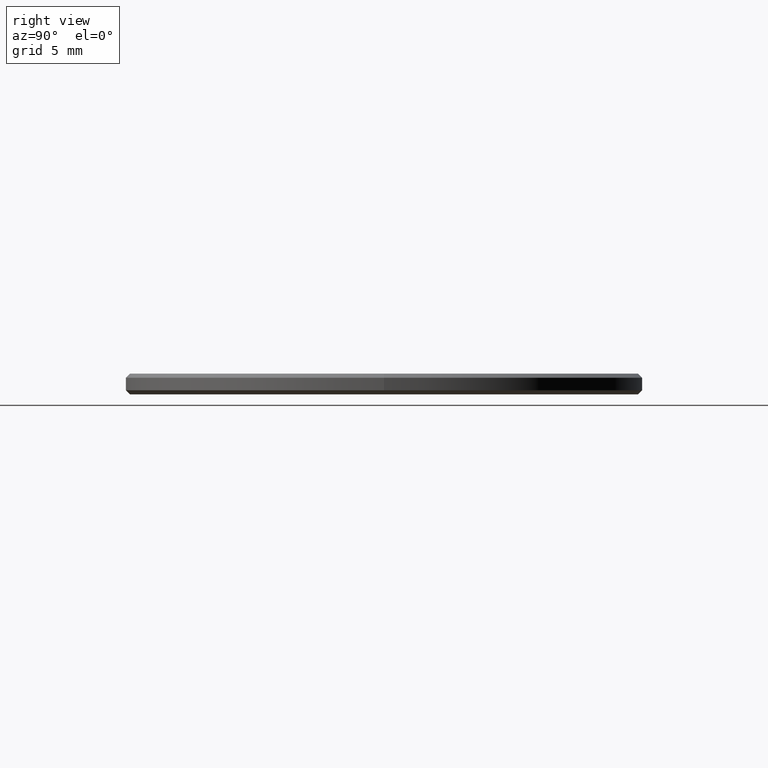
[diagram: clean part render]
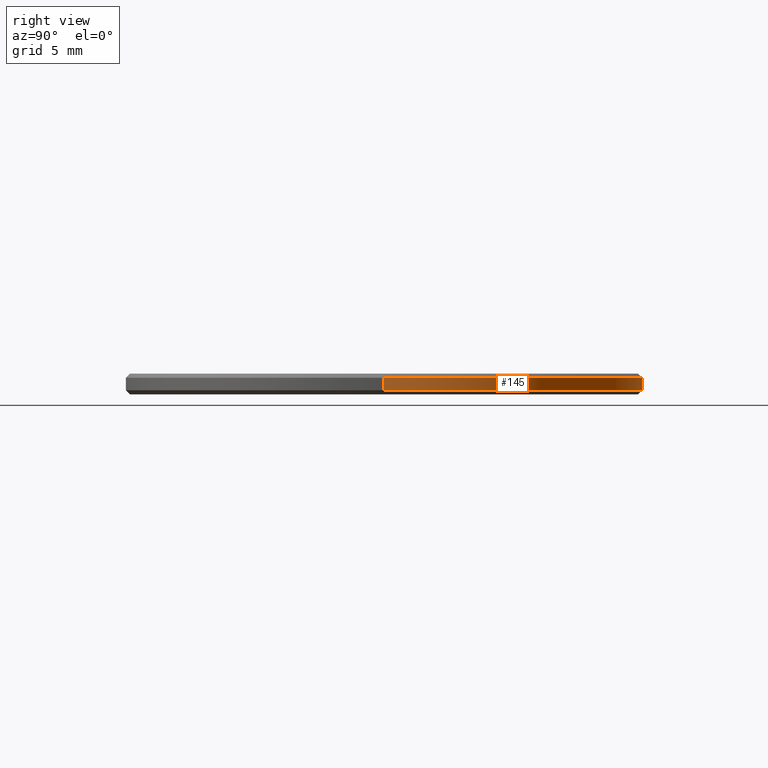
[diagram: same view with one face highlighted and labeled with its STEP entity id]
A machine part, right view. The second image highlights one B-rep face of the part: STEP entity #145.
In plain terms, the highlighted cylindrical surface (partial cylindrical patch) has radius 12.5 mm, axis along (-0, -0, -1).
Its self-contained STEP definition (entity closure, byte-faithful):
#1 = VECTOR ( 'NONE', #26, 1000.000000000000000 ) ;
#4 = CARTESIAN_POINT ( 'NONE',  ( 0.000000000000000000, 0.000000000000000000, 1.000000000000000000 ) ) ;
#6 = CYLINDRICAL_SURFACE ( 'NONE', #224, 12.50000000000000000 ) ;
#26 = DIRECTION ( 'NONE',  ( -0.000000000000000000, -0.000000000000000000, -1.000000000000000000 ) ) ;
#33 = VERTEX_POINT ( 'NONE', #37 ) ;
#35 = ORIENTED_EDGE ( 'NONE', *, *, #161, .F. ) ;
#36 = EDGE_LOOP ( 'NONE', ( #213, #233, #86, #35 ) ) ;
#37 = CARTESIAN_POINT ( 'NONE',  ( 12.50000000000000000, 1.530808498934191521E-15, 0.8000000000000029310 ) ) ;
#42 = DIRECTION ( 'NONE',  ( 0.000000000000000000, 0.000000000000000000, -1.000000000000000000 ) ) ;
#44 = VERTEX_POINT ( 'NONE', #121 ) ;
#59 = CARTESIAN_POINT ( 'NONE',  ( 0.000000000000000000, 0.000000000000000000, 0.8000000000000029310 ) ) ;
#75 = EDGE_CURVE ( 'NONE', #157, #90, #143, .T. ) ;
#86 = ORIENTED_EDGE ( 'NONE', *, *, #75, .T. ) ;
#87 = CARTESIAN_POINT ( 'NONE',  ( 0.000000000000000000, 0.000000000000000000, 0.1999999999999987899 ) ) ;
#88 = CIRCLE ( 'NONE', #128, 12.50000000000000000 ) ;
#90 = VERTEX_POINT ( 'NONE', #198 ) ;
#114 = DIRECTION ( 'NONE',  ( -1.000000000000000000, 0.000000000000000000, 0.000000000000000000 ) ) ;
#115 = LINE ( 'NONE', #229, #120 ) ;
#120 = VECTOR ( 'NONE', #184, 1000.000000000000000 ) ;
#121 = CARTESIAN_POINT ( 'NONE',  ( -12.50000000000000000, 0.000000000000000000, 0.8000000000000029310 ) ) ;
#128 = AXIS2_PLACEMENT_3D ( 'NONE', #59, #42, #154 ) ;
#135 = EDGE_CURVE ( 'NONE', #33, #157, #115, .T. ) ;
#138 = CARTESIAN_POINT ( 'NONE',  ( 12.50000000000000000, 1.530808498934191521E-15, 0.1999999999999987899 ) ) ;
#143 = CIRCLE ( 'NONE', #200, 12.50000000000000000 ) ;
#145 = ADVANCED_FACE ( 'NONE', ( #226 ), #6, .T. ) ;
#146 = EDGE_CURVE ( 'NONE', #44, #33, #88, .T. ) ;
#150 = DIRECTION ( 'NONE',  ( 1.000000000000000000, 0.000000000000000000, 0.000000000000000000 ) ) ;
#152 = LINE ( 'NONE', #186, #1 ) ;
#154 = DIRECTION ( 'NONE',  ( 1.000000000000000000, 0.000000000000000000, 0.000000000000000000 ) ) ;
#157 = VERTEX_POINT ( 'NONE', #138 ) ;
#161 = EDGE_CURVE ( 'NONE', #44, #90, #152, .T. ) ;
#184 = DIRECTION ( 'NONE',  ( -0.000000000000000000, -0.000000000000000000, -1.000000000000000000 ) ) ;
#186 = CARTESIAN_POINT ( 'NONE',  ( -12.50000000000000000, 0.000000000000000000, 1.000000000000000000 ) ) ;
#198 = CARTESIAN_POINT ( 'NONE',  ( -12.50000000000000000, 0.000000000000000000, 0.1999999999999987899 ) ) ;
#200 = AXIS2_PLACEMENT_3D ( 'NONE', #87, #239, #150 ) ;
#213 = ORIENTED_EDGE ( 'NONE', *, *, #146, .T. ) ;
#223 = DIRECTION ( 'NONE',  ( -0.000000000000000000, -0.000000000000000000, -1.000000000000000000 ) ) ;
#224 = AXIS2_PLACEMENT_3D ( 'NONE', #4, #223, #114 ) ;
#226 = FACE_OUTER_BOUND ( 'NONE', #36, .T. ) ;
#229 = CARTESIAN_POINT ( 'NONE',  ( 12.50000000000000000, 1.530808498934191521E-15, 1.000000000000000000 ) ) ;
#233 = ORIENTED_EDGE ( 'NONE', *, *, #135, .T. ) ;
#239 = DIRECTION ( 'NONE',  ( -0.000000000000000000, -0.000000000000000000, 1.000000000000000000 ) ) ;